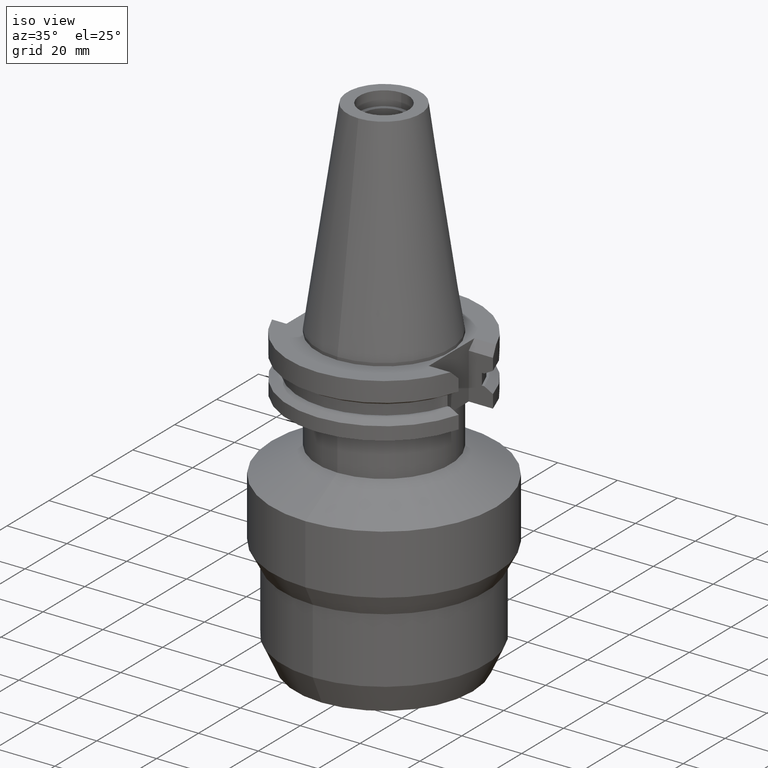
[diagram: clean part render]
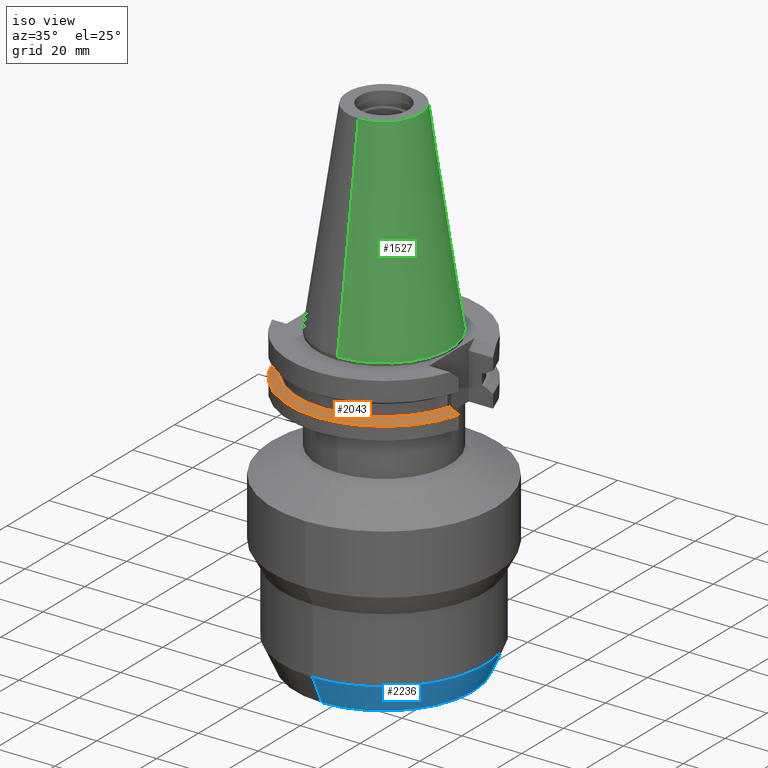
[diagram: same view with three faces highlighted in distinct colors, each labeled with its STEP entity id]
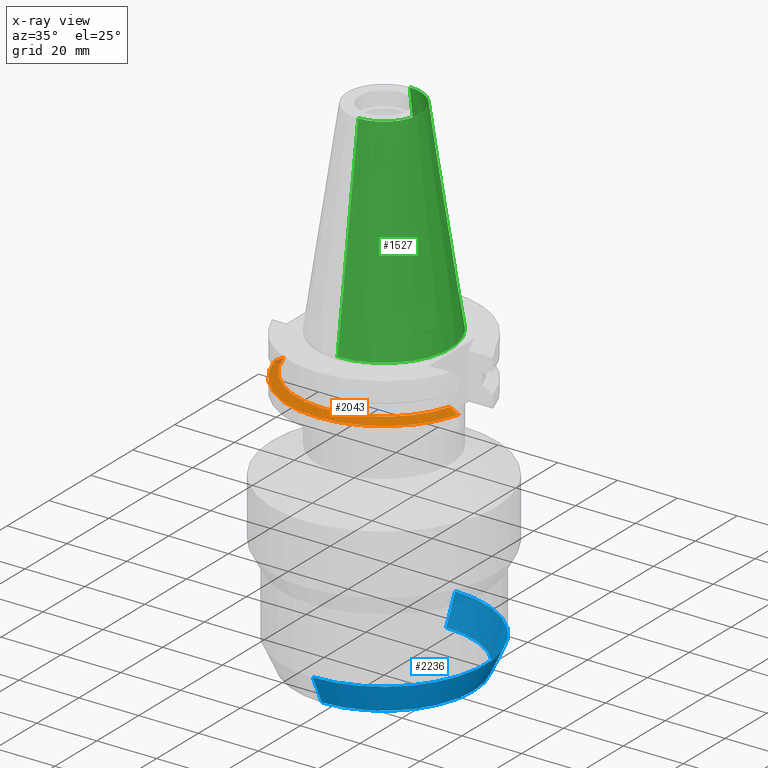
[diagram: x-ray of the same camera — body ghosted, the three highlighted faces saturated]
A machine part, iso view with three faces highlighted in distinct colors.
The next image is the same camera in x-ray (body ghosted, the three faces saturated) — at least one of them is partly hidden behind the body in this view.
Their STEP definitions:

[orange] entity #2043 — the highlighted conical surface has half-angle 60 deg.
#750=CARTESIAN_POINT('',(0.E0,1.055026073065E-14,-1.30475E1));
#751=DIRECTION('',(0.E0,0.E0,-1.E0));
#752=DIRECTION('',(9.592008904640E-1,-2.827253998727E-1,0.E0));
#753=AXIS2_PLACEMENT_3D('',#750,#751,#752);
#758=CARTESIAN_POINT('',(0.E0,1.055026073065E-14,-1.30475E1));
#759=DIRECTION('',(0.E0,0.E0,-1.E0));
#760=DIRECTION('',(0.E0,-1.E0,0.E0));
#761=AXIS2_PLACEMENT_3D('',#758,#759,#760);
#782=CARTESIAN_POINT('',(2.778616453829E1,-8.190000190935E0,-1.30475E1));
#783=CARTESIAN_POINT('',(2.809979231209E1,-8.190000190935E0,-1.322118545817E1));
#784=CARTESIAN_POINT('',(2.873197346784E1,-8.189999991752E0,-1.357175242995E1));
#785=CARTESIAN_POINT('',(2.969507516306E1,-8.189999742465E0,-1.410716232486E1));
#786=CARTESIAN_POINT('',(3.034703588124E1,-8.190000606414E0,-1.447045037372E1));
#787=CARTESIAN_POINT('',(3.067550146399E1,-8.190000606414E0,-1.465367218811E1));
#792=CARTESIAN_POINT('',(0.E0,1.055026073065E-14,-1.465366676908E1));
#793=DIRECTION('',(0.E0,0.E0,-1.E0));
#794=DIRECTION('',(9.661575315241E-1,-2.579527559055E-1,0.E0));
#795=AXIS2_PLACEMENT_3D('',#792,#793,#794);
#800=CARTESIAN_POINT('',(0.E0,1.055026073065E-14,-1.465366676908E1));
#801=DIRECTION('',(0.E0,0.E0,-1.E0));
#802=DIRECTION('',(0.E0,-1.E0,0.E0));
#803=AXIS2_PLACEMENT_3D('',#800,#801,#802);
#808=CARTESIAN_POINT('',(-3.067550165946E1,-8.189999874273E0,
-1.465366564557E1));
#809=CARTESIAN_POINT('',(-3.034704197157E1,-8.189999874273E0,
-1.447044711589E1));
#810=CARTESIAN_POINT('',(-2.969507671883E1,-8.189999973374E0,
-1.410716585305E1));
#811=CARTESIAN_POINT('',(-2.873197856724E1,-8.190000281781E0,
-1.357175809927E1));
#812=CARTESIAN_POINT('',(-2.809979245297E1,-8.189999360262E0,
-1.322117861375E1));
#813=CARTESIAN_POINT('',(-2.778617704657E1,-8.189999360262E0,-1.30475E1));
#1376=CARTESIAN_POINT('',(3.067550146399E1,-8.190000606414E0,
-1.465367218811E1));
#1377=VERTEX_POINT('',#1376);
#1378=VERTEX_POINT('',#782);
#1388=CARTESIAN_POINT('',(-3.067550165946E1,-8.189999874273E0,
-1.465366564557E1));
#1389=VERTEX_POINT('',#1388);
#1390=CARTESIAN_POINT('',(0.E0,-3.175E1,-1.465366676908E1));
#1391=VERTEX_POINT('',#1390);
#1409=CARTESIAN_POINT('',(-2.778617704657E1,-8.189999360262E0,-1.30475E1));
#1410=VERTEX_POINT('',#1409);
#1431=CARTESIAN_POINT('',(3.537899182731E-14,-2.896803755053E1,-1.30475E1));
#1432=VERTEX_POINT('',#1431);
#2030=CARTESIAN_POINT('',(0.E0,1.055026073065E-14,-1.385058338454E1));
#2031=DIRECTION('',(0.E0,0.E0,-1.E0));
#2032=DIRECTION('',(0.E0,-1.E0,0.E0));
#2033=AXIS2_PLACEMENT_3D('',#2030,#2031,#2032);
#2034=CONICAL_SURFACE('',#2033,3.035901877527E1,6.E1);
#2035=ORIENTED_EDGE('',*,*,#1910,.T.);
#2036=ORIENTED_EDGE('',*,*,#1938,.T.);
#2037=ORIENTED_EDGE('',*,*,#1936,.T.);
#2038=ORIENTED_EDGE('',*,*,#1960,.T.);
#2039=ORIENTED_EDGE('',*,*,#2022,.F.);
#2040=ORIENTED_EDGE('',*,*,#2020,.F.);
#2041=EDGE_LOOP('',(#2035,#2036,#2037,#2038,#2039,#2040));
#2042=FACE_OUTER_BOUND('',#2041,.F.);
#754=CIRCLE('',#753,2.896803755053E1);
#762=CIRCLE('',#761,2.896803755053E1);
#788=B_SPLINE_CURVE_WITH_KNOTS('',3,(#782,#783,#784,#785,#786,#787),
.UNSPECIFIED.,.F.,.F.,(4,1,1,4),(0.E0,3.333333333333E-1,6.666666666667E-1,1.E0),
.UNSPECIFIED.);
#796=CIRCLE('',#795,3.175E1);
#804=CIRCLE('',#803,3.175E1);
#814=B_SPLINE_CURVE_WITH_KNOTS('',3,(#808,#809,#810,#811,#812,#813),
.UNSPECIFIED.,.F.,.F.,(4,1,1,4),(0.E0,3.333333333333E-1,6.666666666667E-1,1.E0),
.UNSPECIFIED.);
#1910=EDGE_CURVE('',#1378,#1377,#788,.T.);
#1936=EDGE_CURVE('',#1391,#1389,#804,.T.);
#1938=EDGE_CURVE('',#1377,#1391,#796,.T.);
#1960=EDGE_CURVE('',#1389,#1410,#814,.T.);
#2020=EDGE_CURVE('',#1378,#1432,#754,.T.);
#2022=EDGE_CURVE('',#1432,#1410,#762,.T.);
#2043=ADVANCED_FACE('',(#2042),#2034,.T.);

[blue] entity #2236 — the highlighted conical surface has half-angle 25 deg.
#982=DIRECTION('',(0.E0,-4.226182617408E-1,-9.063077870366E-1));
#983=VECTOR('',#982,1.023737114951E1);
#984=CARTESIAN_POINT('',(0.E0,3.4E1,-9.232179080842E1));
#985=LINE('',#984,#983);
#989=CARTESIAN_POINT('',(0.E0,0.E0,-9.232179080842E1));
#990=DIRECTION('',(0.E0,0.E0,1.E0));
#991=DIRECTION('',(0.E0,-1.E0,0.E0));
#992=AXIS2_PLACEMENT_3D('',#989,#990,#991);
#1005=DIRECTION('',(0.E0,4.226182617408E-1,-9.063077870366E-1));
#1006=VECTOR('',#1005,1.023737114951E1);
#1007=CARTESIAN_POINT('',(0.E0,-3.4E1,-9.232179080842E1));
#1008=LINE('',#1007,#1006);
#1012=CARTESIAN_POINT('',(0.E0,0.E0,-1.016E2));
#1013=DIRECTION('',(0.E0,0.E0,1.E0));
#1014=DIRECTION('',(0.E0,-1.E0,0.E0));
#1015=AXIS2_PLACEMENT_3D('',#1012,#1013,#1014);
#1320=CARTESIAN_POINT('',(0.E0,-2.96735E1,-1.016E2));
#1321=CARTESIAN_POINT('',(0.E0,2.96735E1,-1.016E2));
#1322=VERTEX_POINT('',#1320);
#1323=VERTEX_POINT('',#1321);
#1324=CARTESIAN_POINT('',(0.E0,3.4E1,-9.232179080842E1));
#1325=VERTEX_POINT('',#1324);
#1326=CARTESIAN_POINT('',(0.E0,-3.4E1,-9.232179080842E1));
#1327=VERTEX_POINT('',#1326);
#2222=CARTESIAN_POINT('',(0.E0,0.E0,-9.696089540421E1));
#2223=DIRECTION('',(0.E0,0.E0,1.E0));
#2224=DIRECTION('',(0.E0,1.E0,0.E0));
#2225=AXIS2_PLACEMENT_3D('',#2222,#2223,#2224);
#2226=CONICAL_SURFACE('',#2225,3.183675E1,2.5E1);
#2228=ORIENTED_EDGE('',*,*,#2227,.T.);
#2230=ORIENTED_EDGE('',*,*,#2229,.F.);
#2232=ORIENTED_EDGE('',*,*,#2231,.F.);
#2233=ORIENTED_EDGE('',*,*,#2215,.T.);
#2234=EDGE_LOOP('',(#2228,#2230,#2232,#2233));
#2235=FACE_OUTER_BOUND('',#2234,.F.);
#993=CIRCLE('',#992,3.4E1);
#1016=CIRCLE('',#1015,2.96735E1);
#2215=EDGE_CURVE('',#1327,#1325,#993,.T.);
#2227=EDGE_CURVE('',#1325,#1323,#985,.T.);
#2229=EDGE_CURVE('',#1322,#1323,#1016,.T.);
#2231=EDGE_CURVE('',#1327,#1322,#1008,.T.);
#2236=ADVANCED_FACE('',(#2235),#2226,.T.);

[green] entity #1527 — the highlighted conical surface has half-angle 8.297 deg.
#26=CARTESIAN_POINT('',(0.E0,1.642557519356E-14,6.825E1));
#27=DIRECTION('',(0.E0,0.E0,-1.E0));
#28=DIRECTION('',(0.E0,1.E0,0.E0));
#29=AXIS2_PLACEMENT_3D('',#26,#27,#28);
#50=DIRECTION('',(0.E0,-1.443069799457E-1,-9.895329683942E-1));
#51=VECTOR('',#50,6.897193138573E1);
#52=CARTESIAN_POINT('',(0.E0,-1.227186888070E1,6.825E1));
#53=LINE('',#52,#51);
#65=DIRECTION('',(0.E0,1.443069799457E-1,-9.895329683942E-1));
#66=VECTOR('',#65,6.897193138573E1);
#67=CARTESIAN_POINT('',(0.E0,1.227186888070E1,6.825E1));
#68=LINE('',#67,#66);
#72=CARTESIAN_POINT('',(0.E0,1.642557519356E-14,-3.126388037344E-13));
#73=DIRECTION('',(0.E0,0.E0,-1.E0));
#74=DIRECTION('',(0.E0,1.E0,0.E0));
#75=AXIS2_PLACEMENT_3D('',#72,#73,#74);
#1272=CARTESIAN_POINT('',(0.E0,-1.227186888070E1,6.825E1));
#1273=CARTESIAN_POINT('',(0.E0,1.227186888070E1,6.825E1));
#1274=VERTEX_POINT('',#1272);
#1275=VERTEX_POINT('',#1273);
#1474=CARTESIAN_POINT('',(0.E0,2.2225E1,-2.131628207280E-13));
#1475=VERTEX_POINT('',#1474);
#1476=CARTESIAN_POINT('',(0.E0,-2.2225E1,-2.131628207280E-13));
#1477=VERTEX_POINT('',#1476);
#1515=CARTESIAN_POINT('',(0.E0,1.642557519356E-14,3.4125E1));
#1516=DIRECTION('',(0.E0,0.E0,-1.E0));
#1517=DIRECTION('',(0.E0,-1.E0,0.E0));
#1518=AXIS2_PLACEMENT_3D('',#1515,#1516,#1517);
#1519=CONICAL_SURFACE('',#1518,1.724843444035E1,8.29715E0);
#1520=ORIENTED_EDGE('',*,*,#1505,.T.);
#1522=ORIENTED_EDGE('',*,*,#1521,.T.);
#1523=ORIENTED_EDGE('',*,*,#1508,.F.);
#1524=ORIENTED_EDGE('',*,*,#1489,.F.);
#1525=EDGE_LOOP('',(#1520,#1522,#1523,#1524));
#1526=FACE_OUTER_BOUND('',#1525,.F.);
#30=CIRCLE('',#29,1.227186888070E1);
#76=CIRCLE('',#75,2.2225E1);
#1489=EDGE_CURVE('',#1275,#1274,#30,.T.);
#1505=EDGE_CURVE('',#1275,#1475,#68,.T.);
#1508=EDGE_CURVE('',#1274,#1477,#53,.T.);
#1521=EDGE_CURVE('',#1475,#1477,#76,.T.);
#1527=ADVANCED_FACE('',(#1526),#1519,.T.);